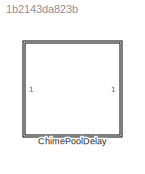
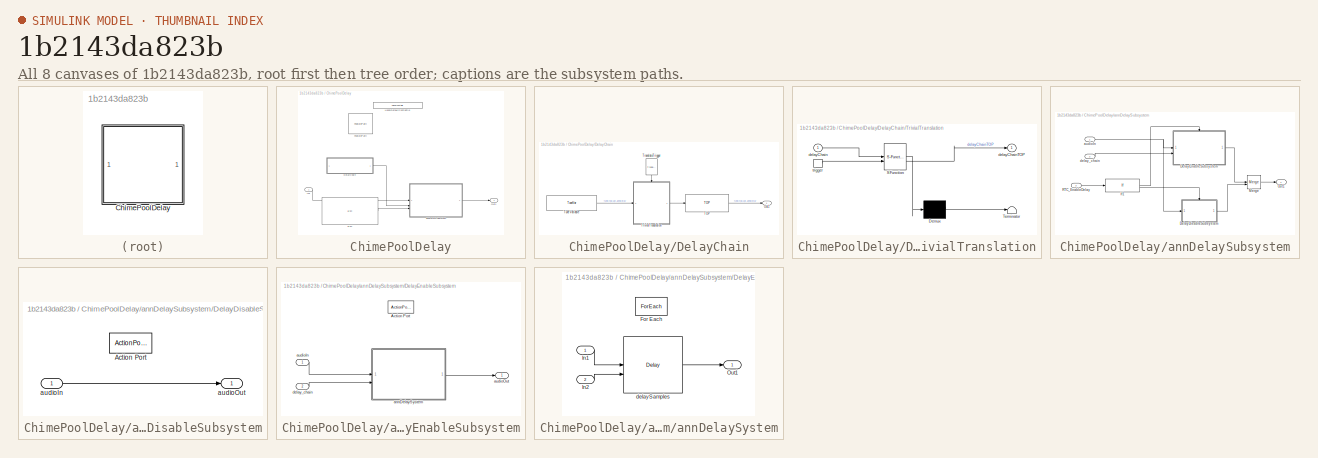
[diagram: thumbnail index - all 8 canvases of the model, root first then tree order]
MODEL slx_1b2143da823b
KIND library
CONFIG AbsTol = auto
CONFIG EnableMultiTasking = off
CONFIG FixedStep = auto
CONFIG MaxStep = auto
CONFIG MinStep = auto
CONFIG RelTol = 1e-3
CONFIG SampleTimeConstraint = Unconstrained
CONFIG SolverName = VariableStepAuto
CONFIG StartTime = 0.0
CONFIG StopTime = 10.0
BLOCK [SubSystem] ChimePoolDelay
BLOCK [SubSystem] ChimePoolDelay/DelayChain
BLOCK [Outport] ChimePoolDelay/DelayChain/Out1
  VectorParamsAs1DForOutWhenUnconnected = off
BLOCK [Reference] ChimePoolDelay/DelayChain/TOP  REF=TOP/TOP
  SourceBlock = TOP/TOP
  SourceProductName = Bose Talaria
  SourceType = Talaria Target Overlay Parameter
BLOCK [Reference] ChimePoolDelay/DelayChain/TranslateTrigger  REF=TuneVar/TranslateTrigger
  NameLocation = right
  SourceBlock = TuneVar/TranslateTrigger
  SourceProductName = Bose Talaria
  SourceType = Talaria Translate Trigger
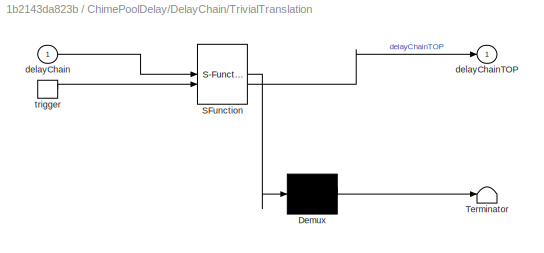
BLOCK [SubSystem] ChimePoolDelay/DelayChain/TrivialTranslation
  ErrorFcn = Stateflow.Translate.translate
  PermitHierarchicalResolution = ExplicitOnly
  SFBlockType = MATLAB Function
  TreatAsAtomicUnit = on
BLOCK [Demux] ChimePoolDelay/DelayChain/TrivialTranslation/ Demux 
  Outputs = 1
BLOCK [S-Function] ChimePoolDelay/DelayChain/TrivialTranslation/ SFunction 
  EnableBusSupport = off
  FunctionName = sf_sfun
  Parameters = MaxDelay,NumChannels
  PortCounts = [2 2]
  SFcnIsStateOwnerBlock = off
  SFunctionDeploymentMode = off
  Tag = Stateflow S-Function 8
BLOCK [Terminator] ChimePoolDelay/DelayChain/TrivialTranslation/ Terminator 
BLOCK [Inport] ChimePoolDelay/DelayChain/TrivialTranslation/delayChain
BLOCK [Outport] ChimePoolDelay/DelayChain/TrivialTranslation/delayChainTOP
  VectorParamsAs1DForOutWhenUnconnected = off
BLOCK [TriggerPort] ChimePoolDelay/DelayChain/TrivialTranslation/trigger
  ShowOutputPort = on
  StatesWhenEnabling = held
  TriggerType = function-call
  VariantControl = Variant
BLOCK [Reference] ChimePoolDelay/DelayChain/Tune Variable  REF=TuneVar/TuneVar
  SourceBlock = TuneVar/TuneVar
  SourceProductName = Bose Talaria
  SourceType = Talaria Tune Variable
BLOCK [Reference] ChimePoolDelay/FeaturePath  REF=FeaturePath/FeaturePath
  SourceBlock = FeaturePath/FeaturePath
  SourceProductName = Bose Talaria
  SourceType = Talaria Feature Path
BLOCK [Reference] ChimePoolDelay/HandyDefaultConfigFile  REF=HandyTextFile/HandyTextFile
  SourceBlock = HandyTextFile/HandyTextFile
  SourceProductName = Bose Talaria
  SourceType = Talaria Handy Text File
BLOCK [Inport] ChimePoolDelay/In1
BLOCK [Outport] ChimePoolDelay/Out1
  VectorParamsAs1DForOutWhenUnconnected = off
BLOCK [Reference] ChimePoolDelay/RTC  REF=RTC/RTC
  SourceBlock = RTC/RTC
  SourceProductName = Bose Talaria
  SourceType = Talaria RTC Receive
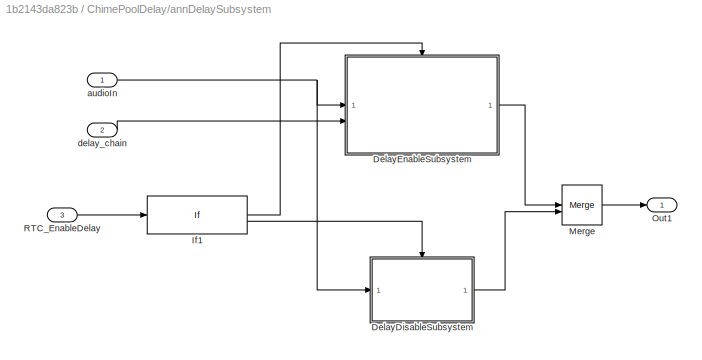
BLOCK [SubSystem] ChimePoolDelay/annDelaySubsystem
BLOCK [SubSystem] ChimePoolDelay/annDelaySubsystem/DelayDisableSubsystem
  TreatAsAtomicUnit = on
BLOCK [ActionPort] ChimePoolDelay/annDelaySubsystem/DelayDisableSubsystem/Action Port
BLOCK [Inport] ChimePoolDelay/annDelaySubsystem/DelayDisableSubsystem/audioIn
BLOCK [Outport] ChimePoolDelay/annDelaySubsystem/DelayDisableSubsystem/audioOut
  VectorParamsAs1DForOutWhenUnconnected = off
BLOCK [SubSystem] ChimePoolDelay/annDelaySubsystem/DelayEnableSubsystem
  TreatAsAtomicUnit = on
BLOCK [ActionPort] ChimePoolDelay/annDelaySubsystem/DelayEnableSubsystem/Action Port
  ActionPortLabel = if(u1 ~= 0)
BLOCK [SubSystem] ChimePoolDelay/annDelaySubsystem/DelayEnableSubsystem/annDelaySystem
  TreatAsAtomicUnit = on
BLOCK [ForEach] ChimePoolDelay/annDelaySubsystem/DelayEnableSubsystem/annDelaySystem/For Each
  DisableCoverage = on
BLOCK [Inport] ChimePoolDelay/annDelaySubsystem/DelayEnableSubsystem/annDelaySystem/In1
  Partition = on
  PartitionDimension = 2
  PartitionOffset = 0
  PartitionWidth = 1
BLOCK [Inport] ChimePoolDelay/annDelaySubsystem/DelayEnableSubsystem/annDelaySystem/In2
  Partition = on
  PartitionDimension = 2
  PartitionOffset = 0
  PartitionWidth = 1
  Port = 2
BLOCK [Outport] ChimePoolDelay/annDelaySubsystem/DelayEnableSubsystem/annDelaySystem/Out1
  ConcatenationDimension = 2
  VectorParamsAs1DForOutWhenUnconnected = off
BLOCK [Delay] ChimePoolDelay/annDelaySubsystem/DelayEnableSubsystem/annDelaySystem/delaySamples
  DelayLength = delay
  DelayLengthSource = Input port
  DelayLengthUpperLimit = Config.DefaultMaxDelay
  InputPortMap = u0,p1
  InputProcessing = Columns as channels (frame based)
BLOCK [Inport] ChimePoolDelay/annDelaySubsystem/DelayEnableSubsystem/audioIn
BLOCK [Outport] ChimePoolDelay/annDelaySubsystem/DelayEnableSubsystem/audioOut
  VectorParamsAs1DForOutWhenUnconnected = off
BLOCK [Inport] ChimePoolDelay/annDelaySubsystem/DelayEnableSubsystem/delay_chain
  Port = 2
BLOCK [If] ChimePoolDelay/annDelaySubsystem/If1
  IfExpression = u1 ~= 0
BLOCK [Merge] ChimePoolDelay/annDelaySubsystem/Merge
BLOCK [Outport] ChimePoolDelay/annDelaySubsystem/Out1
  VectorParamsAs1DForOutWhenUnconnected = off
BLOCK [Inport] ChimePoolDelay/annDelaySubsystem/RTC_EnableDelay
  Port = 3
BLOCK [Inport] ChimePoolDelay/annDelaySubsystem/audioIn
BLOCK [Inport] ChimePoolDelay/annDelaySubsystem/delay_chain
  Port = 2
CHART ChimePoolDelay/DelayChain/TrivialTranslation states=1 transitions=1
  STATE_LABEL 'eML_blk_kernel()'
  STATE_LABEL "SCRIPT:\nfunction delayChainTOP  = fcn(delayChain, MaxDelay, NumChannels)\n%#codegen\n\n% Verify that the total delay does not exceed the allocated max delay\ntotalDelay = sum(delayChain.Value);\nif (totalDelay > MaxDelay)\n    TranslateError('Total delay [%d] must not exceed build-time max [%d]', ...\n        totalDelay,MaxDelay);\nend\n\ndelayChainTOP = delayChain.Value;"
CHART  states=0 transitions=0
